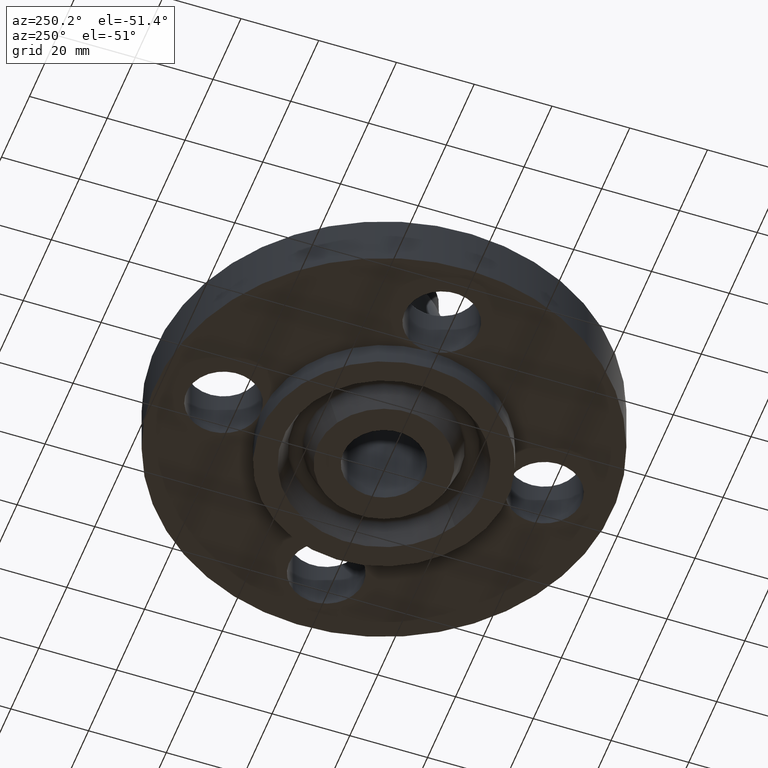
[diagram: clean part render]
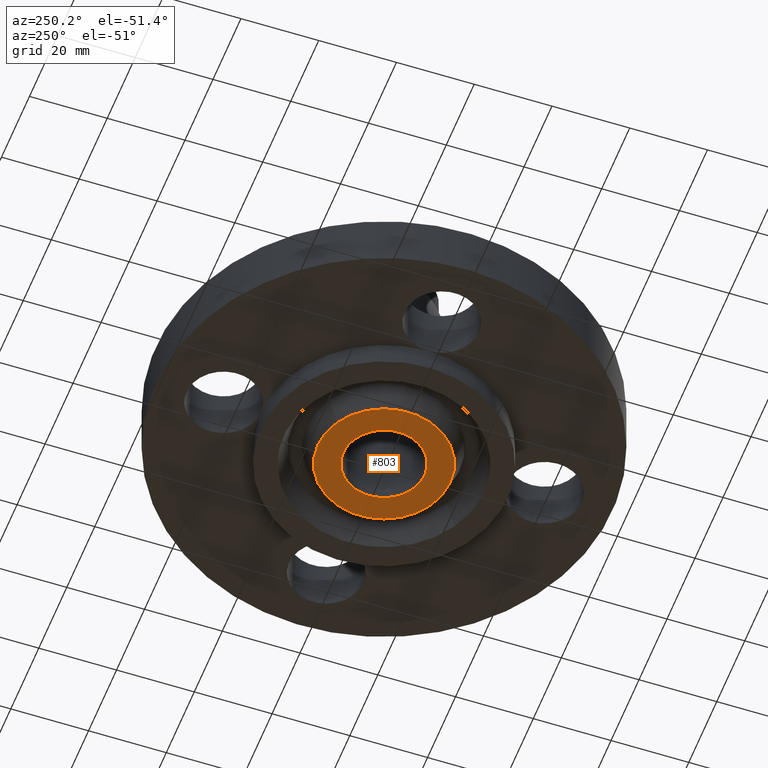
[diagram: same view with one face highlighted and labeled with its STEP entity id]
A machine part, auxiliary view. The second image highlights one B-rep face of the part: STEP entity #803.
In plain terms, the highlighted planar face has unit normal (0, 0, -1).
Its self-contained STEP definition (entity closure, byte-faithful):
#386=AXIS2_PLACEMENT_3D('Circle Axis2P3D',#384,#385,$) ;
#410=AXIS2_PLACEMENT_3D('Circle Axis2P3D',#408,#409,$) ;
#756=AXIS2_PLACEMENT_3D('Plane Axis2P3D',#753,#754,#755) ;
#783=AXIS2_PLACEMENT_3D('Circle Axis2P3D',#781,#782,$) ;
#792=AXIS2_PLACEMENT_3D('Circle Axis2P3D',#790,#791,$) ;
#381=CARTESIAN_POINT('Vertex',(0.197523321906,0.3615640155,-0.250000000001)) ;
#384=CARTESIAN_POINT('Axis2P3D Location',(0.,0.,-0.250000000001)) ;
#388=CARTESIAN_POINT('Vertex',(-0.197523321906,-0.3615640155,-0.250000000001)) ;
#408=CARTESIAN_POINT('Axis2P3D Location',(0.,0.,-0.250000000001)) ;
#753=CARTESIAN_POINT('Axis2P3D Location',(0.,0.412000000002,-0.250000000001)) ;
#781=CARTESIAN_POINT('Axis2P3D Location',(1.39870617276E-016,6.99353086378E-017,-0.250000000001)) ;
#785=CARTESIAN_POINT('Vertex',(-0.322173961943,0.589735481593,-0.250000000001)) ;
#787=CARTESIAN_POINT('Vertex',(0.322173961943,-0.589735481593,-0.250000000001)) ;
#790=CARTESIAN_POINT('Axis2P3D Location',(-2.09805925913E-016,0.,-0.250000000001)) ;
#385=DIRECTION('Axis2P3D Direction',(0.,0.,-0.0393700787402)) ;
#409=DIRECTION('Axis2P3D Direction',(0.,0.,-0.0393700787402)) ;
#754=DIRECTION('Axis2P3D Direction',(0.,0.,-0.0393700787402)) ;
#755=DIRECTION('Axis2P3D XDirection',(0.0393700787402,0.,0.)) ;
#782=DIRECTION('Axis2P3D Direction',(0.,0.,-0.0393700787402)) ;
#791=DIRECTION('Axis2P3D Direction',(0.,0.,-0.0393700787402)) ;
#796=ORIENTED_EDGE('',*,*,#789,.T.) ;
#797=ORIENTED_EDGE('',*,*,#794,.T.) ;
#800=ORIENTED_EDGE('',*,*,#390,.F.) ;
#801=ORIENTED_EDGE('',*,*,#412,.F.) ;
#802=FACE_BOUND('',#799,.T.) ;
#803=ADVANCED_FACE('PartBody',(#798,#802),#757,.T.) ;
#387=CIRCLE('generated circle',#386,0.412000000002) ;
#411=CIRCLE('generated circle',#410,0.412000000002) ;
#784=CIRCLE('generated circle',#783,0.672000000003) ;
#793=CIRCLE('generated circle',#792,0.672000000003) ;
#390=EDGE_CURVE('',#382,#389,#387,.T.) ;
#412=EDGE_CURVE('',#389,#382,#411,.T.) ;
#789=EDGE_CURVE('',#786,#788,#784,.T.) ;
#794=EDGE_CURVE('',#788,#786,#793,.T.) ;
#795=EDGE_LOOP('',(#796,#797)) ;
#799=EDGE_LOOP('',(#800,#801)) ;
#798=FACE_OUTER_BOUND('',#795,.T.) ;
#757=PLANE('',#756) ;
#382=VERTEX_POINT('',#381) ;
#389=VERTEX_POINT('',#388) ;
#786=VERTEX_POINT('',#785) ;
#788=VERTEX_POINT('',#787) ;